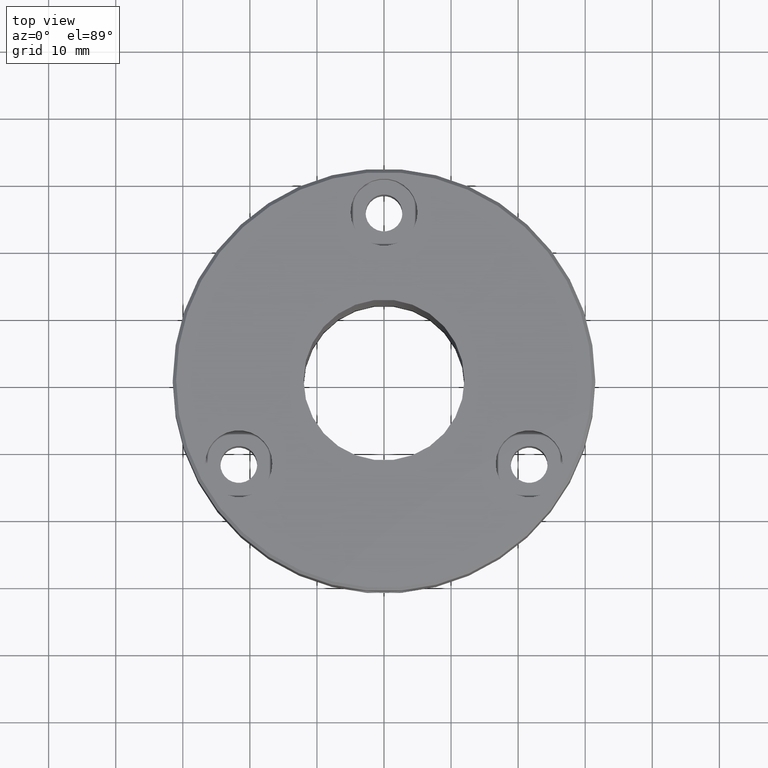
[diagram: clean part render]
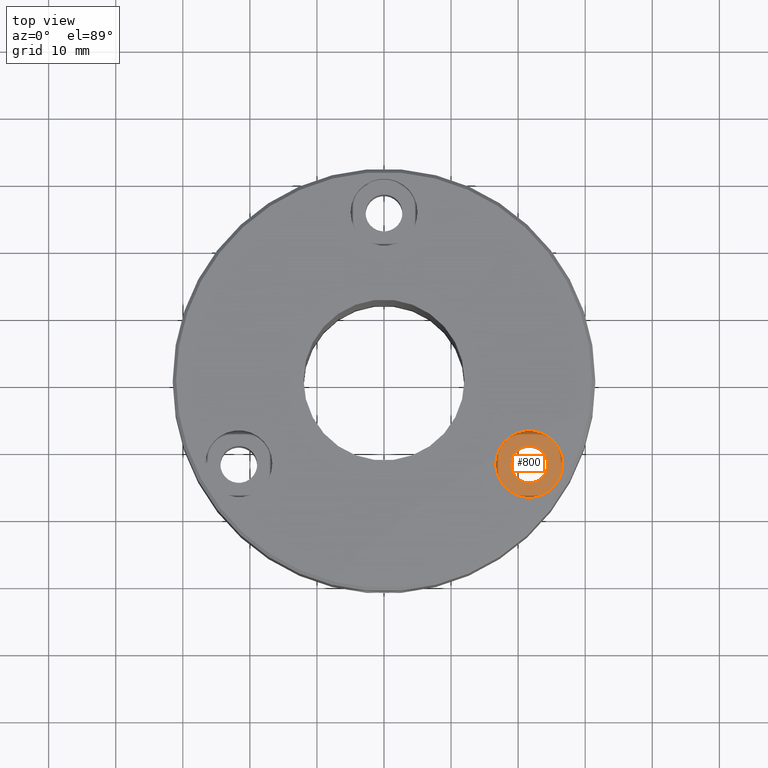
[diagram: same view with one face highlighted and labeled with its STEP entity id]
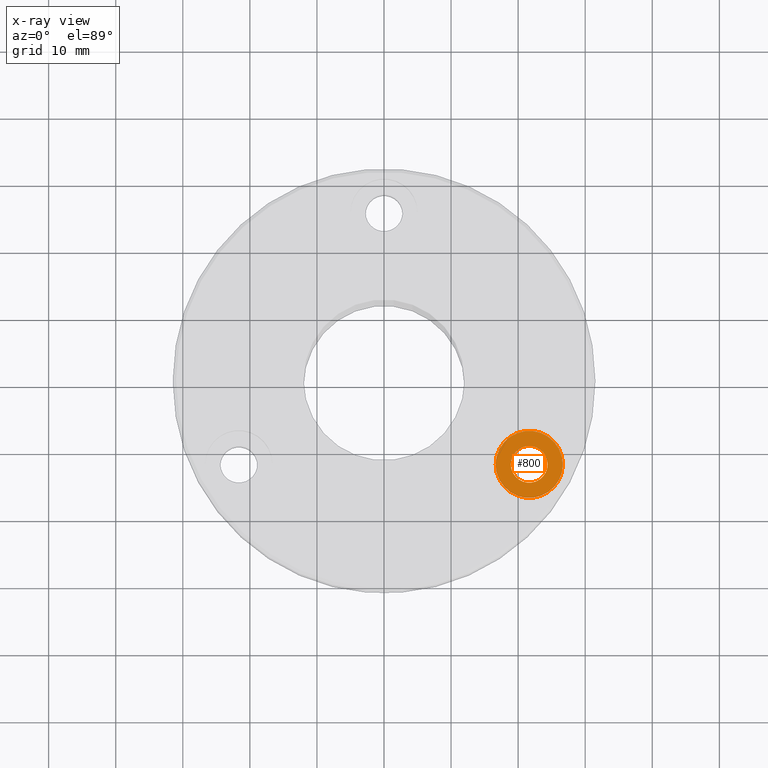
[diagram: x-ray of the same camera — body ghosted, the highlighted face saturated]
A machine part, top view. The second image highlights one B-rep face of the part: STEP entity #800.
The next image is the same camera in x-ray: the body ghosted, the highlighted face saturated — about 0% of this face is hidden behind the body in this view.
In plain terms, the highlighted planar face has unit normal (0, 0, -1).
Its self-contained STEP definition (entity closure, byte-faithful):
#22 = AXIS2_PLACEMENT_3D ( 'NONE', #932, #1243, #439 ) ;
#60 = AXIS2_PLACEMENT_3D ( 'NONE', #1164, #481, #775 ) ;
#70 = DIRECTION ( 'NONE',  ( -0.000000000000000000, -0.000000000000000000, 1.000000000000000000 ) ) ;
#90 = DIRECTION ( 'NONE',  ( 1.000000000000000000, 0.000000000000000000, 0.000000000000000000 ) ) ;
#126 = AXIS2_PLACEMENT_3D ( 'NONE', #926, #351, #1039 ) ;
#133 = EDGE_CURVE ( 'NONE', #143, #1097, #1172, .T. ) ;
#143 = VERTEX_POINT ( 'NONE', #682 ) ;
#201 = CARTESIAN_POINT ( 'NONE',  ( 21.65063509461091940, -12.50000000000010125, -5.400000000000000355 ) ) ;
#258 = CARTESIAN_POINT ( 'NONE',  ( 24.40063509461092295, -12.50000000000010125, -5.400000000000000355 ) ) ;
#351 = DIRECTION ( 'NONE',  ( -0.000000000000000000, -0.000000000000000000, 1.000000000000000000 ) ) ;
#416 = VERTEX_POINT ( 'NONE', #258 ) ;
#439 = DIRECTION ( 'NONE',  ( 1.000000000000000000, 0.000000000000000000, 0.000000000000000000 ) ) ;
#447 = EDGE_CURVE ( 'NONE', #1050, #416, #928, .T. ) ;
#481 = DIRECTION ( 'NONE',  ( 0.000000000000000000, 0.000000000000000000, -1.000000000000000000 ) ) ;
#496 = DIRECTION ( 'NONE',  ( -0.000000000000000000, -0.000000000000000000, 1.000000000000000000 ) ) ;
#533 = EDGE_LOOP ( 'NONE', ( #731, #1028 ) ) ;
#599 = CIRCLE ( 'NONE', #852, 2.750000000000005773 ) ;
#620 = ORIENTED_EDGE ( 'NONE', *, *, #447, .F. ) ;
#673 = EDGE_CURVE ( 'NONE', #1097, #143, #761, .T. ) ;
#682 = CARTESIAN_POINT ( 'NONE',  ( 16.65063509461091940, -12.50000000000010125, -5.400000000000000355 ) ) ;
#693 = EDGE_CURVE ( 'NONE', #416, #1050, #599, .T. ) ;
#731 = ORIENTED_EDGE ( 'NONE', *, *, #673, .T. ) ;
#761 = CIRCLE ( 'NONE', #22, 4.999999999999997335 ) ;
#763 = PLANE ( 'NONE',  #60 ) ;
#775 = DIRECTION ( 'NONE',  ( -1.000000000000000000, 0.000000000000000000, -0.000000000000000000 ) ) ;
#800 = ADVANCED_FACE ( 'NONE', ( #1070, #958 ), #763, .F. ) ;
#808 = ORIENTED_EDGE ( 'NONE', *, *, #693, .F. ) ;
#834 = DIRECTION ( 'NONE',  ( 1.000000000000000000, 0.000000000000000000, 0.000000000000000000 ) ) ;
#852 = AXIS2_PLACEMENT_3D ( 'NONE', #201, #496, #90 ) ;
#913 = CARTESIAN_POINT ( 'NONE',  ( 26.65063509461091584, -12.50000000000010125, -5.400000000000000355 ) ) ;
#924 = CARTESIAN_POINT ( 'NONE',  ( 21.65063509461091940, -12.50000000000010125, -5.400000000000000355 ) ) ;
#926 = CARTESIAN_POINT ( 'NONE',  ( 21.65063509461091940, -12.50000000000010125, -5.400000000000000355 ) ) ;
#928 = CIRCLE ( 'NONE', #126, 2.750000000000005773 ) ;
#932 = CARTESIAN_POINT ( 'NONE',  ( 21.65063509461091940, -12.50000000000010125, -5.400000000000000355 ) ) ;
#958 = FACE_OUTER_BOUND ( 'NONE', #533, .T. ) ;
#1028 = ORIENTED_EDGE ( 'NONE', *, *, #133, .T. ) ;
#1039 = DIRECTION ( 'NONE',  ( 1.000000000000000000, 0.000000000000000000, 0.000000000000000000 ) ) ;
#1050 = VERTEX_POINT ( 'NONE', #1233 ) ;
#1063 = AXIS2_PLACEMENT_3D ( 'NONE', #924, #70, #834 ) ;
#1070 = FACE_BOUND ( 'NONE', #1150, .T. ) ;
#1097 = VERTEX_POINT ( 'NONE', #913 ) ;
#1150 = EDGE_LOOP ( 'NONE', ( #808, #620 ) ) ;
#1164 = CARTESIAN_POINT ( 'NONE',  ( 24.40063509461092295, -12.50000000000010125, -5.400000000000000355 ) ) ;
#1172 = CIRCLE ( 'NONE', #1063, 4.999999999999997335 ) ;
#1233 = CARTESIAN_POINT ( 'NONE',  ( 18.90063509461091229, -12.50000000000010125, -5.400000000000000355 ) ) ;
#1243 = DIRECTION ( 'NONE',  ( -0.000000000000000000, -0.000000000000000000, 1.000000000000000000 ) ) ;